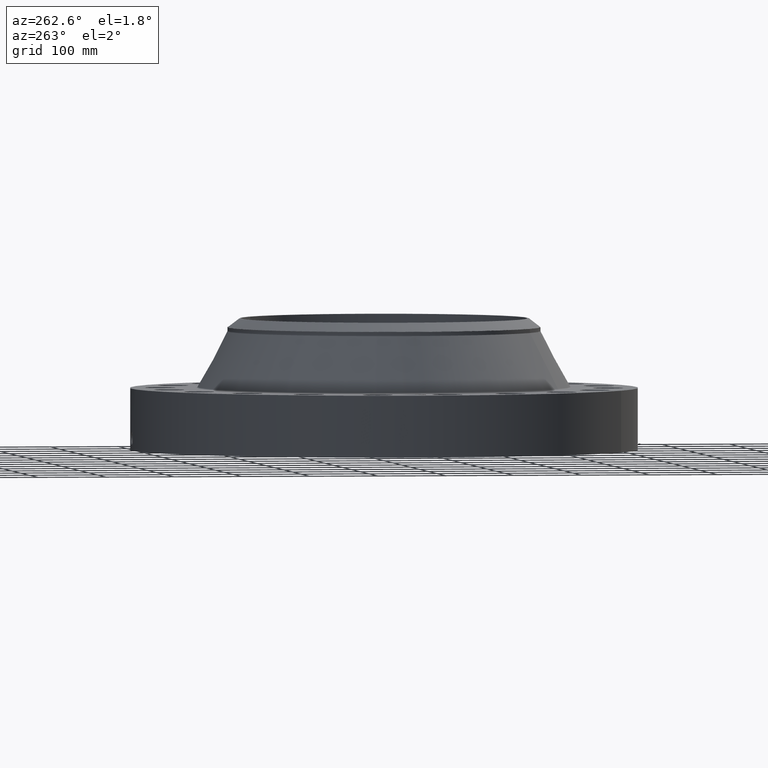
[diagram: clean part render]
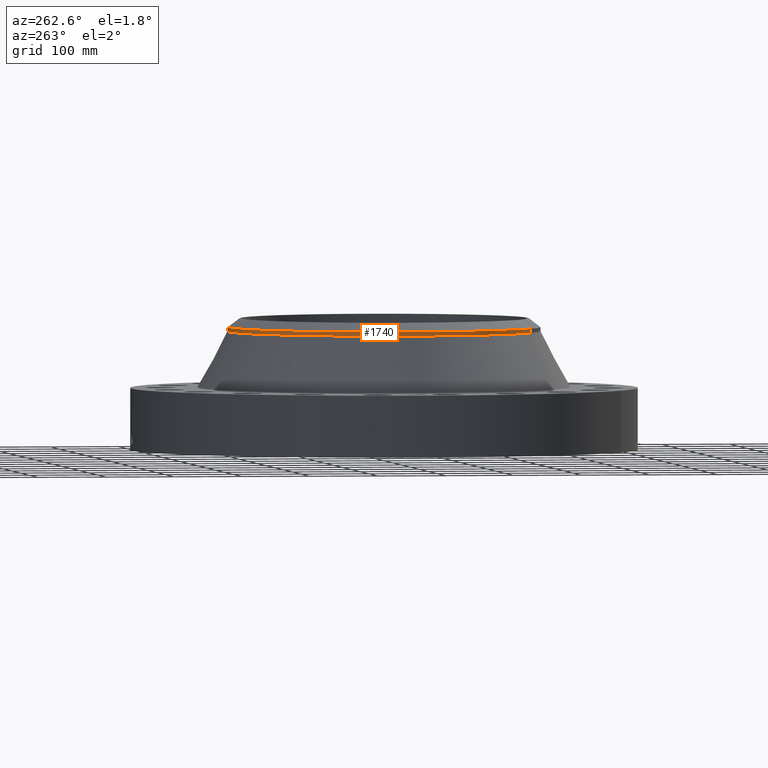
[diagram: same view with one face highlighted and labeled with its STEP entity id]
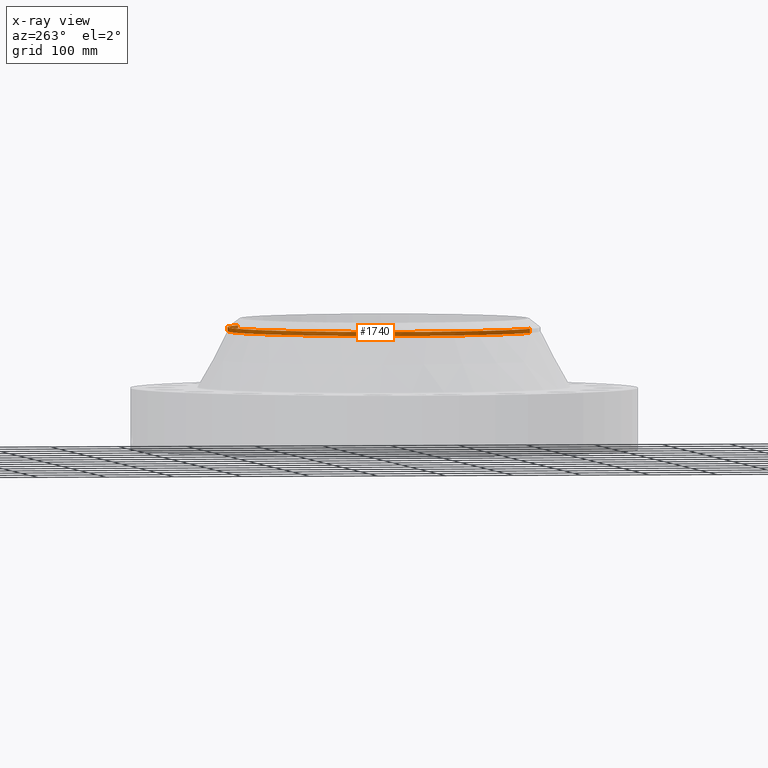
[diagram: x-ray of the same camera — body ghosted, the highlighted face saturated]
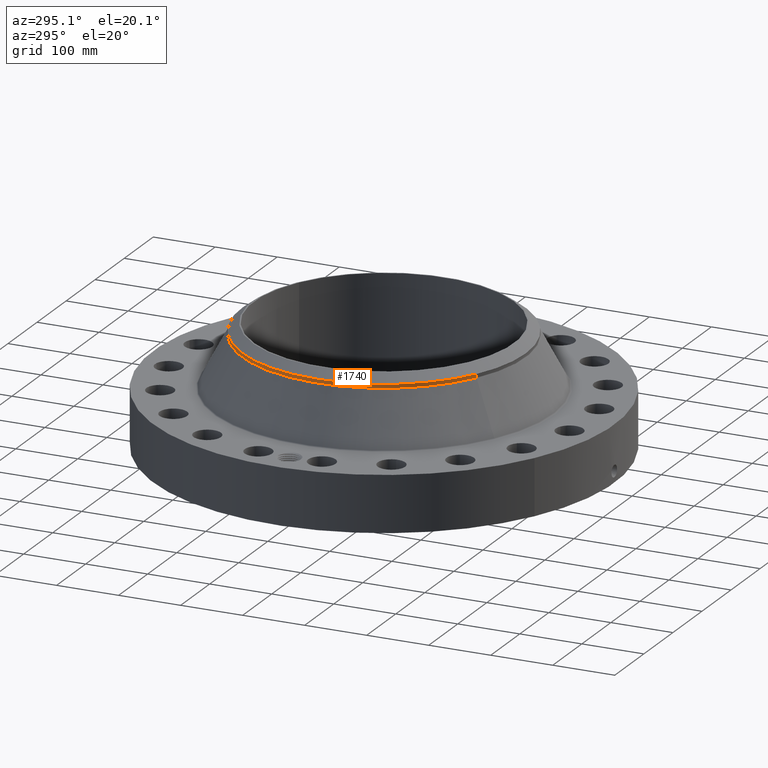
[diagram: same view with one face highlighted and labeled with its STEP entity id]
A machine part, auxiliary view. The second image highlights one B-rep face of the part: STEP entity #1740.
The next image is the same camera in x-ray: the body ghosted, the highlighted face saturated — about 1% of this face is hidden behind the body in this view.
A second angle (auxiliary view) of the same face is appended — the face is thin or edge-on in the first view.
In plain terms, the highlighted cylindrical surface (partial cylindrical patch) has radius 228.6 mm, axis along (0, 0, -1).
Its self-contained STEP definition (entity closure, byte-faithful):
#1321=AXIS2_PLACEMENT_3D('Circle Axis2P3D',#1319,#1320,$) ;
#1362=AXIS2_PLACEMENT_3D('Circle Axis2P3D',#1360,#1361,$) ;
#1699=AXIS2_PLACEMENT_3D('Cylinder Axis2P3D',#1696,#1697,#1698) ;
#1730=AXIS2_PLACEMENT_3D('Circle Axis2P3D',#1728,#1729,$) ;
#1319=CARTESIAN_POINT('Axis2P3D Location',(0.,0.,7.05137736273)) ;
#1323=CARTESIAN_POINT('Vertex',(-4.31482984746,-7.89824305704,7.05137736273)) ;
#1325=CARTESIAN_POINT('Vertex',(-4.31482984746,7.89824305704,7.05137736273)) ;
#1357=CARTESIAN_POINT('Vertex',(4.31482984746,7.89824305704,7.05137736273)) ;
#1360=CARTESIAN_POINT('Axis2P3D Location',(0.,0.,7.05137736273)) ;
#1696=CARTESIAN_POINT('Axis2P3D Location',(0.,0.,3.78100000002)) ;
#1701=CARTESIAN_POINT('Line Origine',(-4.31482984746,-7.89824305704,6.9332759805)) ;
#1705=CARTESIAN_POINT('Vertex',(-4.31482984746,-7.89824305704,6.81517459827)) ;
#1712=CARTESIAN_POINT('Vertex',(4.31482984746,7.89824305704,6.81517459827)) ;
#1715=CARTESIAN_POINT('Line Origine',(4.31482984746,7.89824305704,6.9332759805)) ;
#1728=CARTESIAN_POINT('Axis2P3D Location',(0.,0.,6.81517459827)) ;
#1320=DIRECTION('Axis2P3D Direction',(0.,0.,0.0393700787402)) ;
#1361=DIRECTION('Axis2P3D Direction',(0.,0.,0.0393700787402)) ;
#1697=DIRECTION('Axis2P3D Direction',(0.,0.,-0.0393700787402)) ;
#1698=DIRECTION('Axis2P3D XDirection',(-0.0188750212049,-0.0345504945626,0.)) ;
#1702=DIRECTION('Vector Direction',(0.,0.,-0.0393700787402)) ;
#1716=DIRECTION('Vector Direction',(0.,0.,-0.0393700787402)) ;
#1729=DIRECTION('Axis2P3D Direction',(0.,0.,-0.0393700787402)) ;
#1703=VECTOR('Line Direction',#1702,0.0393700787402) ;
#1717=VECTOR('Line Direction',#1716,0.0393700787402) ;
#1734=ORIENTED_EDGE('',*,*,#1719,.F.) ;
#1735=ORIENTED_EDGE('',*,*,#1732,.F.) ;
#1736=ORIENTED_EDGE('',*,*,#1707,.T.) ;
#1737=ORIENTED_EDGE('',*,*,#1327,.T.) ;
#1738=ORIENTED_EDGE('',*,*,#1364,.F.) ;
#1740=ADVANCED_FACE('PartBody',(#1739),#1700,.T.) ;
#1322=CIRCLE('generated circle',#1321,9.00000000004) ;
#1363=CIRCLE('generated circle',#1362,9.00000000004) ;
#1731=CIRCLE('generated circle',#1730,9.00000000004) ;
#1700=CYLINDRICAL_SURFACE('generated cylinder',#1699,9.00000000004) ;
#1327=EDGE_CURVE('',#1324,#1326,#1322,.F.) ;
#1364=EDGE_CURVE('',#1358,#1326,#1363,.T.) ;
#1707=EDGE_CURVE('',#1706,#1324,#1704,.F.) ;
#1719=EDGE_CURVE('',#1713,#1358,#1718,.F.) ;
#1732=EDGE_CURVE('',#1706,#1713,#1731,.T.) ;
#1733=EDGE_LOOP('',(#1734,#1735,#1736,#1737,#1738)) ;
#1739=FACE_OUTER_BOUND('',#1733,.T.) ;
#1704=LINE('Line',#1701,#1703) ;
#1718=LINE('Line',#1715,#1717) ;
#1324=VERTEX_POINT('',#1323) ;
#1326=VERTEX_POINT('',#1325) ;
#1358=VERTEX_POINT('',#1357) ;
#1706=VERTEX_POINT('',#1705) ;
#1713=VERTEX_POINT('',#1712) ;